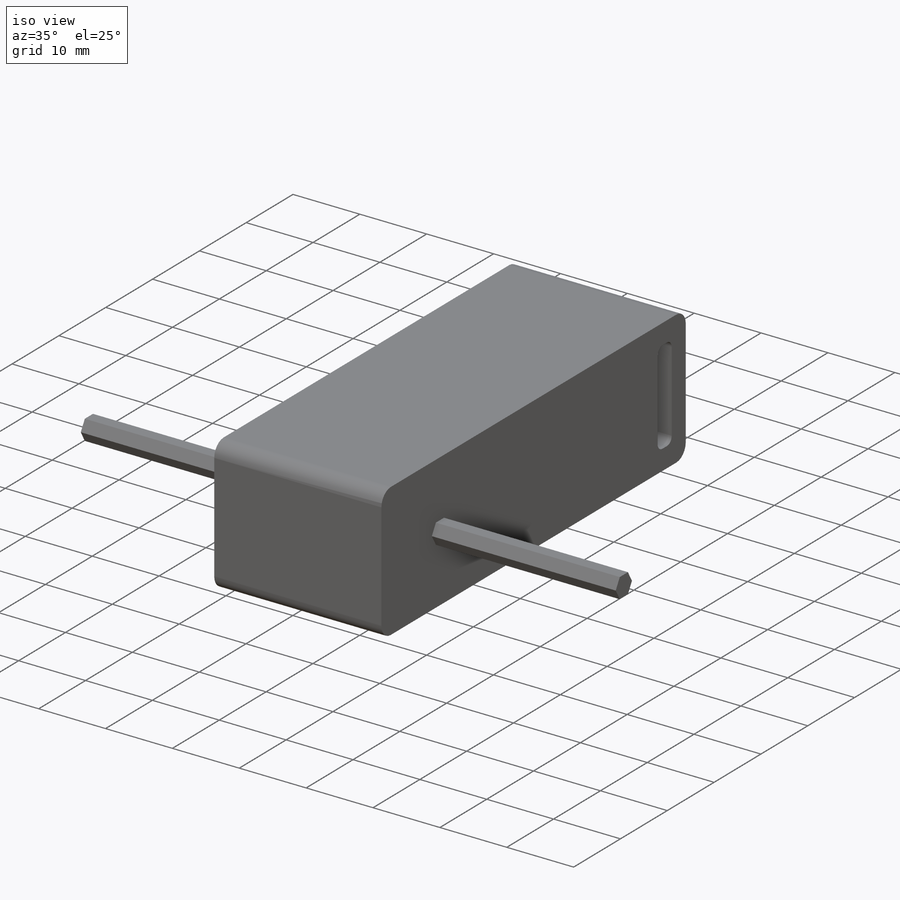
[diagram: iso view]
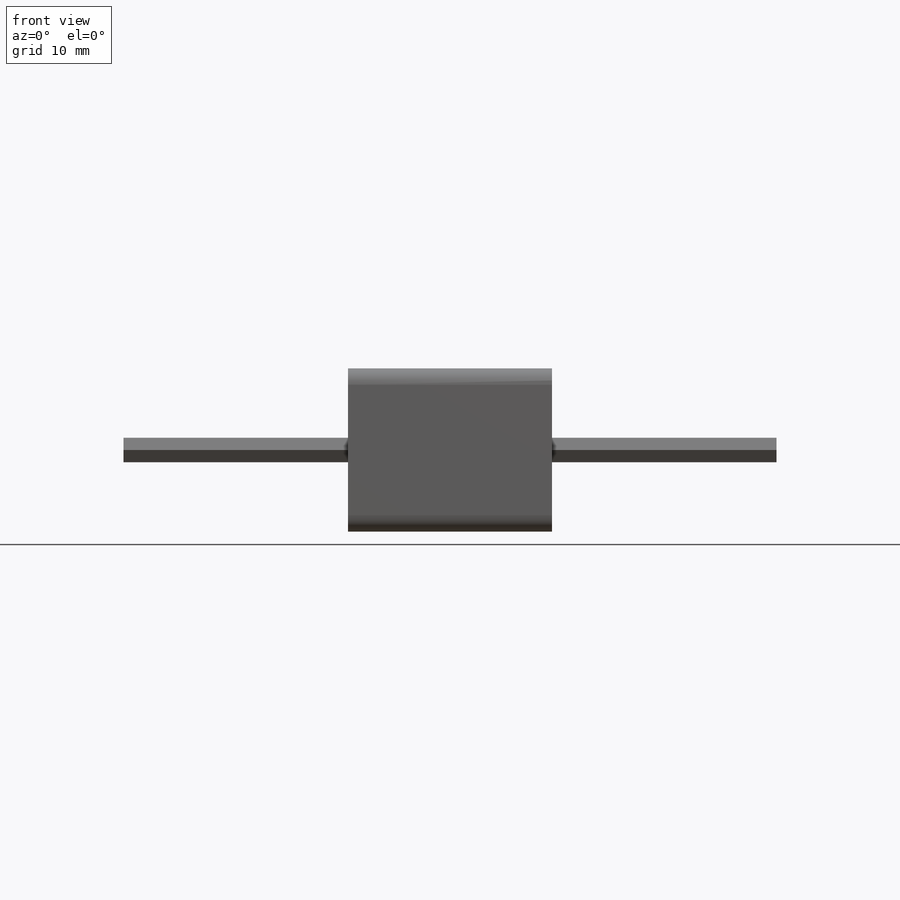
[diagram: front view]
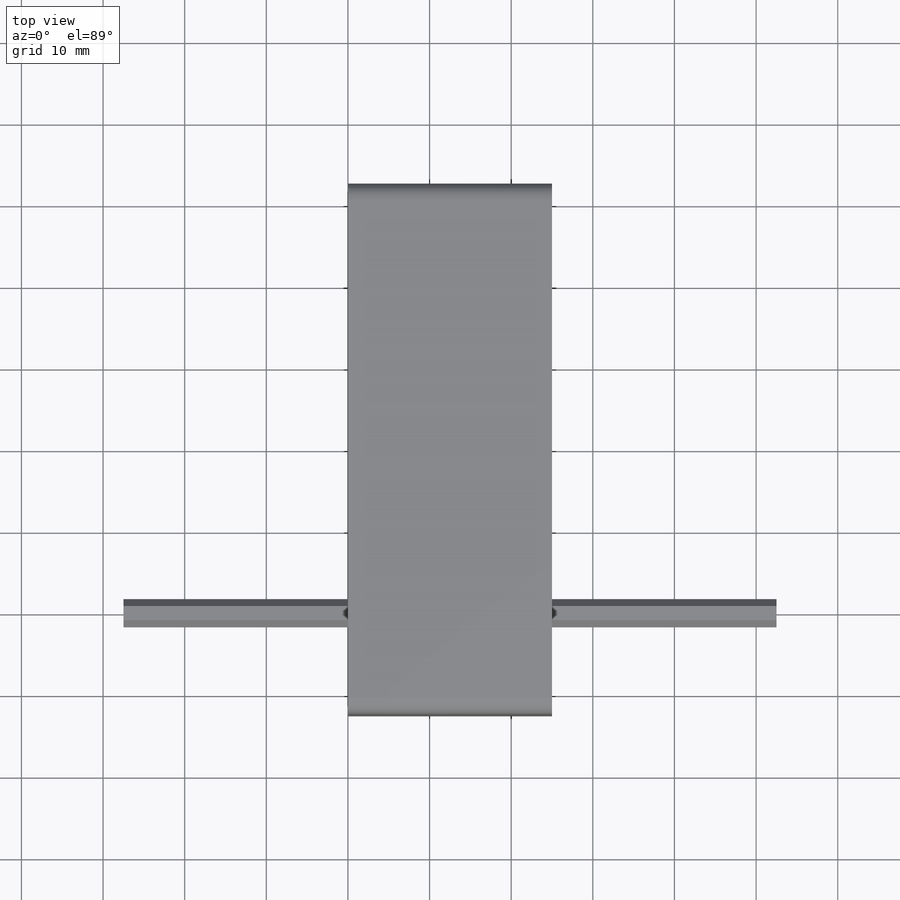
[diagram: top view]
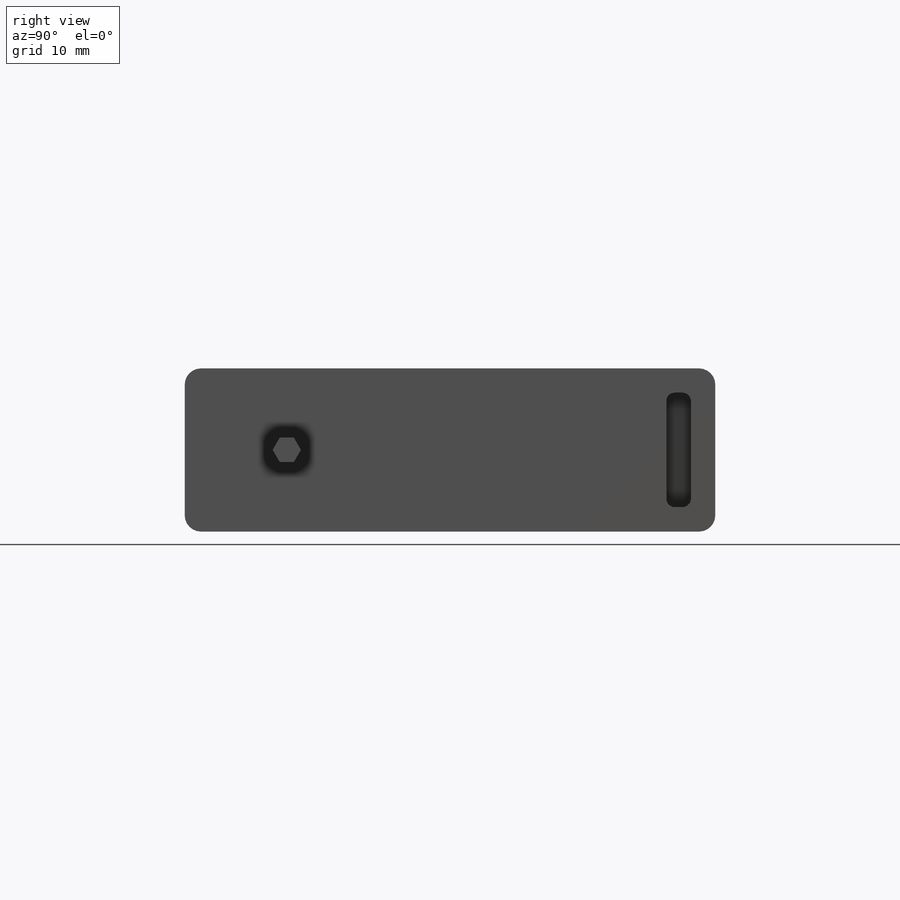
[diagram: right view]
SOLIDWORKS PART (.sldprt)
format: sldprt  version: not decoded by parser v0  size: 251,392 bytes
history: native  units: mm
features: plane x7, sketch x5, fillet x4, extrude x2, material x1, cut_extrude x1, mirror x1 (+9 scaffold rows collapsed)
feature tree (30):
  scaffold x9  (default folders/planes/origin — collapsed)
  material  "材质 <未指定>"
  plane  "前视基准面"
  plane  "上视基准面"
  plane  "右视基准面"
  sketch  "草图1"  dims[D1=20.0mm D2=32.5mm D3=65.0mm D4=20.0mm]
  extrude  "凸台-拉伸1"  Depth=25mm
  fillet  "圆角1"  Radius=2mm
  fillet  "圆角2"  Radius=2mm
  fillet  "圆角3"  Radius=2mm
  fillet  "圆角4"  Radius=2mm
  plane  "基准面1"  Offset=12.5mm
  sketch  "草图3"  dims[D1=12.5mm D2=3.0mm]
  extrude  "凸台-拉伸2"  Depth=80mm
  plane  "基准面2"
  sketch  "草图4"  dims[D4=1.0mm D1=3.0mm D2=7.0mm D3=3.0mm]
  cut_extrude  "切除-拉伸1"  Depth=5mm
  mirror  "镜向1"
  sketch  "草图5"
  plane  "基准面3"
  sketch  "草图6"
  plane  "基准面4"
decode coverage: 10 of 13 modeling features carry decoded parameters
note: suppression state not decoded; provenance and decode notes live in map.json
